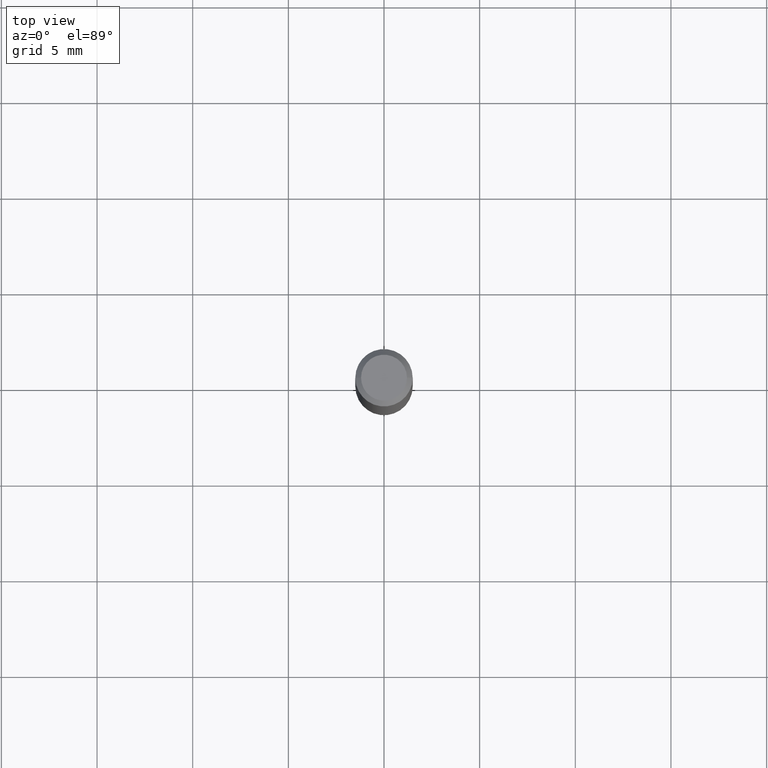
[diagram: clean part render]
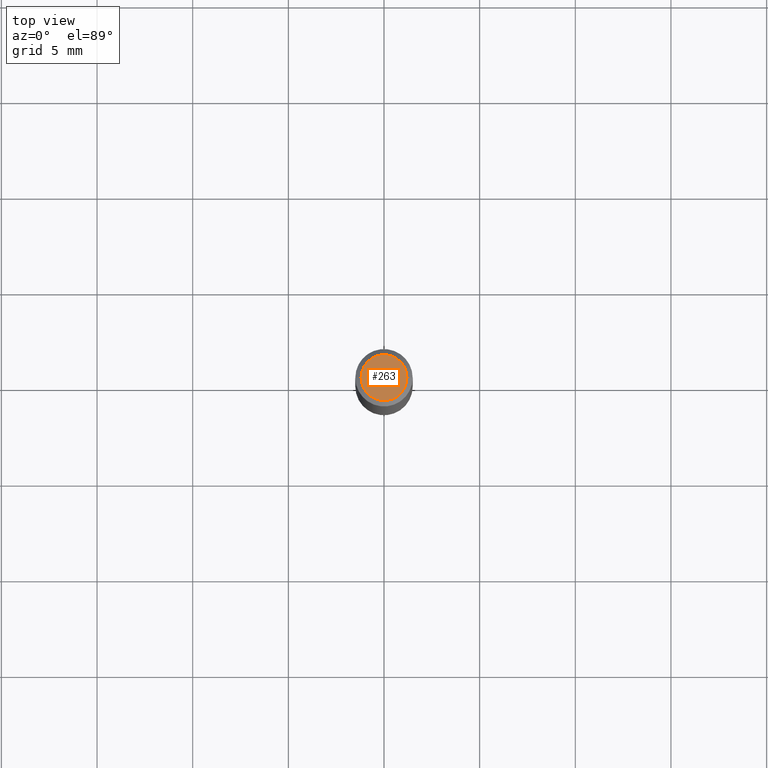
[diagram: same view with one face highlighted and labeled with its STEP entity id]
A machine part, top view. The second image highlights one B-rep face of the part: STEP entity #263.
In plain terms, the highlighted planar face has unit normal (0, -0, -1).
Its self-contained STEP definition (entity closure, byte-faithful):
#37 = CARTESIAN_POINT ( 'NONE',  ( 8.265746106709734507E-48, -1.180129479067563789E-33, -3.380025165646692144E-19 ) ) ;
#45 = ORIENTED_EDGE ( 'NONE', *, *, #459, .T. ) ;
#57 = CIRCLE ( 'NONE', #161, 0.04724000000000000421 ) ;
#119 = DIRECTION ( 'NONE',  ( -2.445468806185136597E-29, 3.491481338843145583E-15, 1.000000000000000000 ) ) ;
#135 = CIRCLE ( 'NONE', #302, 0.04724000000000000421 ) ;
#144 = DIRECTION ( 'NONE',  ( 1.000000000000000000, -6.982962677686266711E-15, 4.876185090822587894E-29 ) ) ;
#148 = DIRECTION ( 'NONE',  ( -2.445468806185136597E-29, 3.491481338843145583E-15, 1.000000000000000000 ) ) ;
#161 = AXIS2_PLACEMENT_3D ( 'NONE', #261, #148, #144 ) ;
#179 = CARTESIAN_POINT ( 'NONE',  ( 4.132873053354867254E-48, -5.900647395337818946E-34, -1.690012582823346072E-19 ) ) ;
#187 = ORIENTED_EDGE ( 'NONE', *, *, #482, .T. ) ;
#215 = FACE_OUTER_BOUND ( 'NONE', #300, .T. ) ;
#229 = VERTEX_POINT ( 'NONE', #365 ) ;
#261 = CARTESIAN_POINT ( 'NONE',  ( 8.265746106709734507E-48, -1.180129479067563789E-33, -3.380025165646692144E-19 ) ) ;
#263 = ADVANCED_FACE ( 'NONE', ( #215 ), #438, .F. ) ;
#291 = CARTESIAN_POINT ( 'NONE',  ( 0.04724000000000000421, -3.852183633974369345E-16, -3.380025165621689721E-19 ) ) ;
#297 = DIRECTION ( 'NONE',  ( -1.000000000000000000, 6.982962677686265922E-15, -4.876176775795935793E-29 ) ) ;
#300 = EDGE_LOOP ( 'NONE', ( #45, #187 ) ) ;
#302 = AXIS2_PLACEMENT_3D ( 'NONE', #37, #119, #447 ) ;
#328 = DIRECTION ( 'NONE',  ( 2.438088387897960049E-29, -3.491481338843145188E-15, -1.000000000000000000 ) ) ;
#337 = VERTEX_POINT ( 'NONE', #291 ) ;
#350 = AXIS2_PLACEMENT_3D ( 'NONE', #179, #328, #297 ) ;
#365 = CARTESIAN_POINT ( 'NONE',  ( -0.04724000000000000421, 3.504923541997677355E-16, -3.380025165670481712E-19 ) ) ;
#438 = PLANE ( 'NONE',  #350 ) ;
#447 = DIRECTION ( 'NONE',  ( 1.000000000000000000, -6.982962677686266711E-15, 4.876185090822587894E-29 ) ) ;
#459 = EDGE_CURVE ( 'NONE', #229, #337, #57, .T. ) ;
#482 = EDGE_CURVE ( 'NONE', #337, #229, #135, .T. ) ;